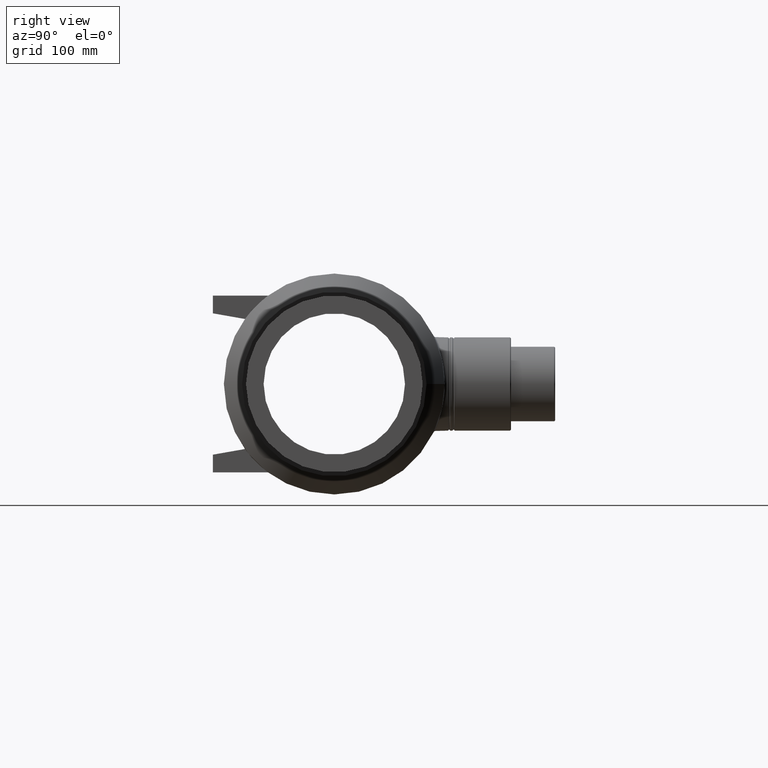
[diagram: clean part render]
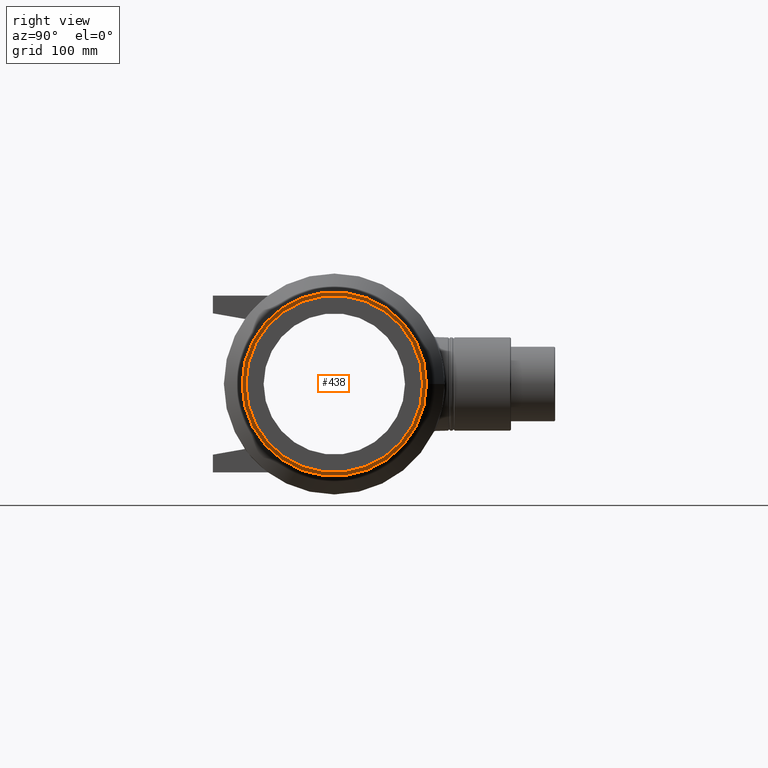
[diagram: same view with one face highlighted and labeled with its STEP entity id]
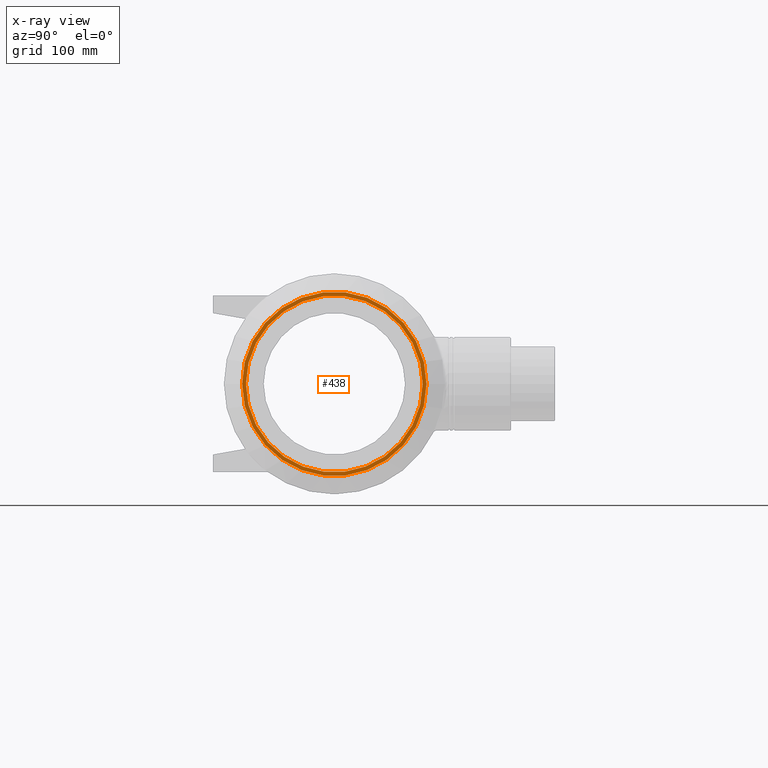
[diagram: x-ray of the same camera — body ghosted, the highlighted face saturated]
A machine part, right view. The second image highlights one B-rep face of the part: STEP entity #438.
The next image is the same camera in x-ray: the body ghosted, the highlighted face saturated — about 0% of this face is hidden behind the body in this view.
In plain terms, the highlighted planar face has unit normal (1, 0, 0).
Its self-contained STEP definition (entity closure, byte-faithful):
#31=PLANE('',#491);
#94=FACE_BOUND('',#186,.T.);
#137=FACE_OUTER_BOUND('',#185,.T.);
#185=EDGE_LOOP('',(#396));
#186=EDGE_LOOP('',(#397));
#221=CIRCLE('',#490,83.5);
#222=CIRCLE('',#492,80.);
#260=VERTEX_POINT('',#913);
#261=VERTEX_POINT('',#916);
#308=EDGE_CURVE('',#260,#260,#221,.T.);
#309=EDGE_CURVE('',#261,#261,#222,.T.);
#396=ORIENTED_EDGE('',*,*,#308,.T.);
#397=ORIENTED_EDGE('',*,*,#309,.F.);
#438=ADVANCED_FACE('',(#137,#94),#31,.T.);
#490=AXIS2_PLACEMENT_3D('',#914,#612,#613);
#491=AXIS2_PLACEMENT_3D('',#915,#614,#615);
#492=AXIS2_PLACEMENT_3D('',#917,#616,#617);
#612=DIRECTION('center_axis',(1.,0.,0.));
#613=DIRECTION('ref_axis',(0.,0.,-1.));
#614=DIRECTION('center_axis',(1.,0.,0.));
#615=DIRECTION('ref_axis',(0.,0.,-1.));
#616=DIRECTION('center_axis',(1.,0.,0.));
#617=DIRECTION('ref_axis',(0.,0.,-1.));
#913=CARTESIAN_POINT('',(93.,83.5,0.));
#914=CARTESIAN_POINT('Origin',(93.,0.,0.));
#915=CARTESIAN_POINT('Origin',(93.,80.,0.));
#916=CARTESIAN_POINT('',(93.,80.,0.));
#917=CARTESIAN_POINT('Origin',(93.,0.,0.));